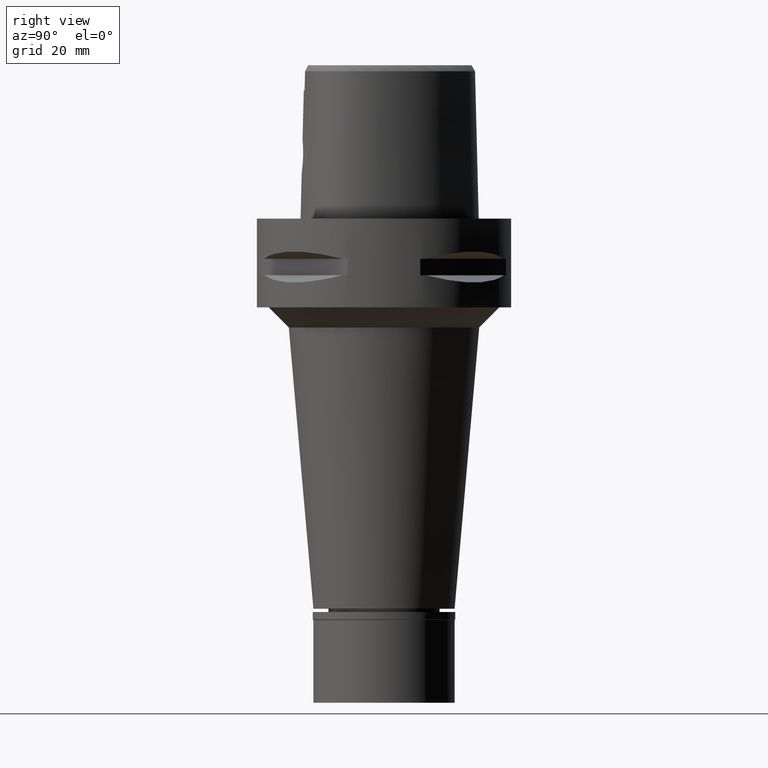
[diagram: clean part render]
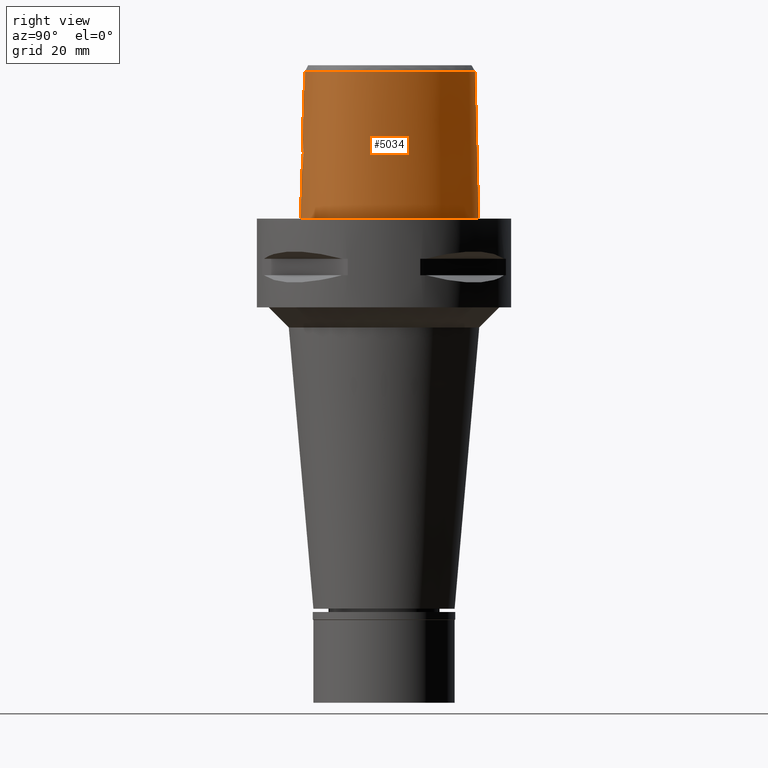
[diagram: same view with one face highlighted and labeled with its STEP entity id]
A machine part, right view. The second image highlights one B-rep face of the part: STEP entity #5034.
In plain terms, the highlighted face is a freeform B-spline surface patch.
Its self-contained STEP definition (entity closure, byte-faithful):
#17 = CARTESIAN_POINT ( 'NONE',  ( 3.042491796684531291, -20.22274507510633867, 12.82354767342773272 ) ) ;
#33 = CARTESIAN_POINT ( 'NONE',  ( 3.637738219117000238, -19.56971420299000286, 36.52185956443999970 ) ) ;
#38 = CARTESIAN_POINT ( 'NONE',  ( 3.860403433732511491, -20.04330035601035220, 16.72651338066181026 ) ) ;
#46 = CARTESIAN_POINT ( 'NONE',  ( 21.05621876373999868, -0.4440252205142999897, 37.25233264522000098 ) ) ;
#62 = CARTESIAN_POINT ( 'NONE',  ( 3.686910441482199374, -20.13511169299744097, 13.82359477142099813 ) ) ;
#75 = CARTESIAN_POINT ( 'NONE',  ( 21.68301093544000224, -0.3332744170274000162, 11.93048561839999877 ) ) ;
#81 = CARTESIAN_POINT ( 'NONE',  ( 18.06826693619926516, 10.43171877940945613, -2.340869023712563793E-06 ) ) ;
#91 = CARTESIAN_POINT ( 'NONE',  ( 4.045013207763220819, -20.05847505278510567, 15.28275217474474346 ) ) ;
#93 = B_SPLINE_CURVE_WITH_KNOTS ( 'NONE', 3,
 ( #873, #3277, #1243, #2425, #4853, #4434, #1651, #3201, #515, #4029, #3682, #4366, #2377, #2810, #2447, #3962, #2095, #1605, #1317, #2071, #486, #455, #902, #3574, #4465, #17, #2015, #2857, #113, #3657, #3176, #3621, #4777, #1268, #62, #1627, #3229, #2404, #1219, #2779, #4810, #3255, #91, #824, #2835, #3989, #4412, #433, #3597, #1680, #38, #2506, #4960, #3803, #1806, #1757, #169, #4541, #3411, #4930, #634, #1781, #1036, #4491, #1419, #4513, #2593, #3335, #2960, #2916, #3732, #4908, #3311, #3356, #4079, #2985, #246, #3382, #1367, #2936, #1013, #4565, #979, #2170, #1390 ),
 .UNSPECIFIED., .F., .F.,
 ( 4, 2, 2, 1, 1, 1, 2, 2, 2, 2, 2, 1, 1, 2, 2, 2, 2, 2, 2, 1, 2, 2, 2, 2, 1, 2, 2, 2, 2, 1, 1, 1, 2, 2, 2, 2, 2, 1, 1, 2, 2, 2, 2, 2, 2, 1, 2, 2, 4 ),
 ( 0.0000000000000000000, 0.06249999999999511502, 0.09374999999999265865, 0.1093749999999914235, 0.1171874999999907296, 0.1210937499999903966, 0.1230468749999902300, 0.1249999999999900635, 0.1874999999999801825, 0.2187499999999751032, 0.2343749999999726885, 0.2421874999999714950, 0.2460937499999708844, 0.2480468749999704681, 0.2499999999999700240, 0.2812499999999628075, 0.2968749999999591993, 0.3124999999999555911, 0.3437499999999480416, 0.3593749999999442668, 0.3671874999999423794, 0.3749999999999404920, 0.4374999999999257261, 0.4687499999999183431, 0.4843749999999148459, 0.4921874999999133471, 0.4999999999999118483, 0.5624999999998991917, 0.5937499999998928635, 0.6093749999998896438, 0.6171874999998880895, 0.6210937499998873124, 0.6230468749998872013, 0.6249999999998872013, 0.6874999999998976374, 0.7187499999999025224, 0.7343749999999049649, 0.7421874999999065192, 0.7460937499999071854, 0.7480468749999075184, 0.7499999999999079625, 0.7812499999999188427, 0.7968749999999242828, 0.8124999999999297229, 0.8437499999999406031, 0.8593749999999460432, 0.8671874999999487077, 0.8749999999999514833, 1.000000000000000000 ),
 .UNSPECIFIED. ) ;
#99 = CARTESIAN_POINT ( 'NONE',  ( 13.69241952609000101, 15.03666369301999950, 37.25233264522000098 ) ) ;
#104 = CARTESIAN_POINT ( 'NONE',  ( 4.711983029180999766E-11, 23.47499999999000053, 5.406786129924998921E-14 ) ) ;
#113 = CARTESIAN_POINT ( 'NONE',  ( 3.289399613302775638, -20.19244639184481116, 13.13636645578711359 ) ) ;
#122 = CARTESIAN_POINT ( 'NONE',  ( 21.44619278392000083, -6.759806529427999422, 24.59140913180999988 ) ) ;
#152 = CARTESIAN_POINT ( 'NONE',  ( 21.99640702127999603, -0.2778990152840000172, -0.7304378950044000396 ) ) ;
#157 = CARTESIAN_POINT ( 'NONE',  ( 4.757642236485276399, 21.67478320247255397, 36.52186680739954738 ) ) ;
#158 = CARTESIAN_POINT ( 'NONE',  ( 6.341471029610005417, -20.29812505792877531, -2.340869023712563793E-06 ) ) ;
#169 = CARTESIAN_POINT ( 'NONE',  ( 3.745459306425696688, -20.04797394566475077, 17.04080371184679166 ) ) ;
#174 = EDGE_CURVE ( 'NONE', #3353, #1009, #3948, .T. ) ;
#179 = EDGE_LOOP ( 'NONE', ( #4334, #4901, #699, #1260, #2805, #1439, #362, #3443 ) ) ;
#203 = CARTESIAN_POINT ( 'NONE',  ( -1.703764700877000038E-11, 22.56201468012000078, 36.52186680743999858 ) ) ;
#206 = CARTESIAN_POINT ( 'NONE',  ( 19.88562079789306125, 4.345879946636745927, 36.52186680739954738 ) ) ;
#230 = CARTESIAN_POINT ( 'NONE',  ( 20.09619608769112276, -10.23243839430244329, 36.52186680739954738 ) ) ;
#246 = CARTESIAN_POINT ( 'NONE',  ( 2.032175996666464535, -20.14130468680087560, 19.00576489869021302 ) ) ;
#258 = CARTESIAN_POINT ( 'NONE',  ( 21.07429999882349136, -0.4408303635841325230, 36.52186680739954738 ) ) ;
#306 = CARTESIAN_POINT ( 'NONE',  ( -0.4685451932369000261, 23.16976065823000042, 11.93048561839999877 ) ) ;
#345 = CARTESIAN_POINT ( 'NONE',  ( 11.13012652795000079, -18.61140108451999708, 11.93048561839999877 ) ) ;
#359 = CARTESIAN_POINT ( 'NONE',  ( 0.5990981970601000350, 23.20165460155999781, 11.93048561839999877 ) ) ;
#360 = B_SPLINE_CURVE_WITH_KNOTS ( 'NONE', 3,
 ( #4899, #2108, #158, #1333, #889, #3669, #4844, #4090, #2438, #2904, #2463, #552, #4821, #4453, #4020, #81, #1282, #1259, #2057, #1639, #2130, #4069, #104 ),
 .UNSPECIFIED., .F., .F.,
 ( 4, 1, 1, 1, 1, 1, 1, 1, 1, 1, 1, 1, 1, 1, 1, 1, 1, 1, 1, 1, 4 ),
 ( 0.0000000000000000000, 0.08333333333340001148, 0.1666666666667000196, 0.2083333333333000081, 0.2500000000000000000, 0.2916666666666999919, 0.3125000000000000000, 0.3333333333333000081, 0.3541666666666000163, 0.3749999999998999689, 0.4166666666666000163, 0.4583333333332000326, 0.4999999999998999689, 0.5833333333331000015, 0.6666666666664999852, 0.7499999999998000488, 0.8333333333329999704, 0.8749999999997000177, 0.9166666666664000651, 0.9583333333329999704, 1.000000000000000000 ),
 .UNSPECIFIED. ) ;
#362 = ORIENTED_EDGE ( 'NONE', *, *, #174, .T. ) ;
#368 = CARTESIAN_POINT ( 'NONE',  ( 11.02138175153000077, -18.31230440379999891, 24.59140913180999988 ) ) ;
#376 = CARTESIAN_POINT ( 'NONE',  ( 4.711983029180999766E-11, 23.47499999999000053, 5.406786129924998921E-14 ) ) ;
#410 = B_SPLINE_SURFACE_WITH_KNOTS ( 'NONE', 3, 3, ( 
 ( #3926, #2791, #3164, #1513 ),
 ( #4744, #1207, #4329, #834 ),
 ( #2691, #3142, #442, #5058 ),
 ( #3086, #2312, #4272, #3557 ),
 ( #3906, #345, #368, #3529 ),
 ( #5103, #4725, #2746, #784 ),
 ( #2361, #3323, #466, #885 ),
 ( #4790, #4816, #2869, #2081 ),
 ( #1253, #857, #549, #1710 ),
 ( #2103, #1745, #3665, #2925 ),
 ( #4840, #2514, #3690, #3264 ),
 ( #2433, #4015, #4042, #4065 ),
 ( #1659, #945, #122, #498 ),
 ( #3213, #4896, #4869, #2820 ),
 ( #152, #75, #4473, #46 ),
 ( #4499, #3717, #1633, #2025 ),
 ( #4113, #967, #3293, #3238 ),
 ( #4449, #4087, #1687, #99 ),
 ( #1352, #2535, #1301, #2049 ),
 ( #920, #3606, #2489, #2456 ),
 ( #4399, #524, #3636, #1329 ),
 ( #2900, #2127, #1276, #2843 ),
 ( #4421, #359, #3131, #4168 ),
 ( #1792, #306, #2156, #2582 ),
 ( #3106, #1180, #2739, #5047 ) ),
 .UNSPECIFIED., .F., .F., .F.,
 ( 4, 1, 1, 1, 1, 1, 1, 1, 1, 1, 1, 1, 1, 1, 1, 1, 1, 1, 1, 1, 1, 1, 4 ),
 ( 4, 4 ),
 ( -0.008985960173572999157, 0.0000000000000000000, 0.08333333333340001148, 0.1666666666667000196, 0.2083333333333000081, 0.2500000000000000000, 0.2916666666666999919, 0.3125000000000000000, 0.3333333333333000081, 0.3541666666666000163, 0.3749999999998999689, 0.4166666666666000163, 0.4583333333332000326, 0.4999999999998999689, 0.5833333333331000015, 0.6666666666664999852, 0.7499999999998000488, 0.8333333333329999704, 0.8749999999997000177, 0.9166666666664000651, 0.9583333333329999704, 1.000000000000000000, 1.011710456763000199 ),
 ( -4.468146998226999979E-09, 1.000000227875999848 ),
 .UNSPECIFIED. ) ;
#433 = CARTESIAN_POINT ( 'NONE',  ( 4.026067555602933723, -20.04243146964289934, 16.01312629724818848 ) ) ;
#442 = CARTESIAN_POINT ( 'NONE',  ( 1.853272111750000173, -20.08023965824000001, 24.59140913180999988 ) ) ;
#455 = CARTESIAN_POINT ( 'NONE',  ( 2.830175095658037154, -20.24590160278928508, 12.60298252333451252 ) ) ;
#466 = CARTESIAN_POINT ( 'NONE',  ( 16.57726024622999716, -15.19304449989999917, 24.59140913180999988 ) ) ;
#486 = CARTESIAN_POINT ( 'NONE',  ( 2.808608589969336489, -20.24816661311874100, 12.58196638594038497 ) ) ;
#498 = CARTESIAN_POINT ( 'NONE',  ( 21.13154852763999969, -6.714587026014999793, 37.25233264522000098 ) ) ;
#508 = EDGE_CURVE ( 'NONE', #1447, #4357, #601, .T. ) ;
#515 = CARTESIAN_POINT ( 'NONE',  ( 1.488028627205681742, -20.35026873354180310, 11.73319909950358131 ) ) ;
#524 = CARTESIAN_POINT ( 'NONE',  ( 4.987110637047000417, 22.24795272973999971, 11.93048561839999877 ) ) ;
#533 = CARTESIAN_POINT ( 'NONE',  ( 2.041042029990999821E-08, -19.88004246002000031, 31.80000004972000127 ) ) ;
#549 = CARTESIAN_POINT ( 'NONE',  ( 19.15132509490999979, -12.46323140321000089, 24.59140913180999988 ) ) ;
#552 = CARTESIAN_POINT ( 'NONE',  ( 22.05732880139742846, -6.847636727110003818, -2.340869023712563793E-06 ) ) ;
#601 = LINE ( 'NONE', #203, #897 ) ;
#634 = CARTESIAN_POINT ( 'NONE',  ( 3.265869583385797359, -20.07528142228585821, 17.89964299956978167 ) ) ;
#650 = CARTESIAN_POINT ( 'NONE',  ( 7.300578979383693934, -19.07170738130587750, 36.52186680739954738 ) ) ;
#699 = ORIENTED_EDGE ( 'NONE', *, *, #4381, .F. ) ;
#784 = CARTESIAN_POINT ( 'NONE',  ( 14.21104783100000013, -16.40237676551999968, 37.25233264522000098 ) ) ;
#790 = B_SPLINE_CURVE_WITH_KNOTS ( 'NONE', 3,
 ( #816, #1195, #3195, #3566 ),
 .UNSPECIFIED., .F., .F.,
 ( 4, 4 ),
 ( 0.0000000000000000000, 1.000000000000000000 ),
 .UNSPECIFIED. ) ;
#798 = CARTESIAN_POINT ( 'NONE',  ( -1.703764700877000038E-11, 22.56201468012000078, 36.52186680743999858 ) ) ;
#816 = CARTESIAN_POINT ( 'NONE',  ( 3.736696120837999402, -19.67778323291999953, 31.80000004972999861 ) ) ;
#824 = CARTESIAN_POINT ( 'NONE',  ( 4.048221369816550563, -20.05572751809631882, 15.37605551816500871 ) ) ;
#834 = CARTESIAN_POINT ( 'NONE',  ( -0.4439347078632999710, -19.74161804946999865, 37.25233264522000098 ) ) ;
#857 = CARTESIAN_POINT ( 'NONE',  ( 19.40779762277000131, -12.64961922656000048, 11.93048561839999877 ) ) ;
#873 = CARTESIAN_POINT ( 'NONE',  ( -1.023179399715999921E-12, -20.38876923348000147, 11.44999999999999929 ) ) ;
#885 = CARTESIAN_POINT ( 'NONE',  ( 16.38077671211999942, -14.94316433215000117, 37.25233264522000098 ) ) ;
#889 = CARTESIAN_POINT ( 'NONE',  ( 14.67337967325132908, -17.21410161350732082, -2.340869023712563793E-06 ) ) ;
#897 = VECTOR ( 'NONE', #1793, 999.9999999999998863 ) ;
#902 = CARTESIAN_POINT ( 'NONE',  ( 2.844541275131343472, -20.24438467540248965, 12.61708719065900475 ) ) ;
#920 = CARTESIAN_POINT ( 'NONE',  ( 7.580410842885000555, 21.33037926756000147, -0.7304378950044000396 ) ) ;
#929 = CARTESIAN_POINT ( 'NONE',  ( 2.503154195451466890, -19.81241979350624405, 31.80000012137768906 ) ) ;
#945 = CARTESIAN_POINT ( 'NONE',  ( 21.76083704019000109, -6.805026032840999939, 11.93048561839999877 ) ) ;
#967 = CARTESIAN_POINT ( 'NONE',  ( 17.80867300954000143, 10.28184204431999760, 11.93048561839999877 ) ) ;
#979 = CARTESIAN_POINT ( 'NONE',  ( 1.027682876504587339, -20.17741712424493272, 19.45809765211912179 ) ) ;
#1008 = CARTESIAN_POINT ( 'NONE',  ( 0.0000000000000000000, -20.18628283968999781, 19.55000000000000071 ) ) ;
#1009 = VERTEX_POINT ( 'NONE', #4550 ) ;
#1013 = CARTESIAN_POINT ( 'NONE',  ( 1.613182323480255143, -20.15753140428500956, 19.21500890072886847 ) ) ;
#1036 = CARTESIAN_POINT ( 'NONE',  ( 3.080229322179501850, -20.08617626112514998, 18.13071590546873324 ) ) ;
#1180 = CARTESIAN_POINT ( 'NONE',  ( -0.7025952810403001125, 23.15559737187000167, 11.93048561839999877 ) ) ;
#1195 = CARTESIAN_POINT ( 'NONE',  ( 3.704239288984441103, -19.64128042389065598, 33.37395322129999897 ) ) ;
#1207 = CARTESIAN_POINT ( 'NONE',  ( -0.4520500659801000021, -20.37458439087999906, 11.93048561839999877 ) ) ;
#1219 = CARTESIAN_POINT ( 'NONE',  ( 3.927790621264558357, -20.09243382075442241, 14.47756111131404921 ) ) ;
#1228 = FACE_OUTER_BOUND ( 'NONE', #179, .T. ) ;
#1243 = CARTESIAN_POINT ( 'NONE',  ( 0.5100579658808596095, -20.38531276215466903, 11.47358267918780506 ) ) ;
#1253 = CARTESIAN_POINT ( 'NONE',  ( 19.66427015062999928, -12.83600704991000008, -0.7304378950044000396 ) ) ;
#1259 = CARTESIAN_POINT ( 'NONE',  ( 10.74572894842425441, 19.17433598256371141, -2.340869023712563793E-06 ) ) ;
#1260 = ORIENTED_EDGE ( 'NONE', *, *, #4673, .T. ) ;
#1268 = CARTESIAN_POINT ( 'NONE',  ( 3.644654988411417218, -20.14185568965836737, 13.73169098936010002 ) ) ;
#1276 = CARTESIAN_POINT ( 'NONE',  ( 2.438150569352000030, 22.68791622998000435, 24.59140913180999988 ) ) ;
#1282 = CARTESIAN_POINT ( 'NONE',  ( 14.40795643454458386, 15.64093753797241426, -2.340869023712563793E-06 ) ) ;
#1301 = CARTESIAN_POINT ( 'NONE',  ( 10.34823226544999919, 18.70095485719999928, 24.59140913180999988 ) ) ;
#1317 = CARTESIAN_POINT ( 'NONE',  ( 2.714817435285833191, -20.25772213911198349, 12.49437854279828031 ) ) ;
#1329 = CARTESIAN_POINT ( 'NONE',  ( 4.750826074913000241, 21.65775769440000076, 37.25233264522000098 ) ) ;
#1333 = CARTESIAN_POINT ( 'NONE',  ( 11.23259758738402070, -18.89324224279648234, -2.340869023712563793E-06 ) ) ;
#1352 = CARTESIAN_POINT ( 'NONE',  ( 10.75753574162999904, 19.18839676167000263, -0.7304378950044000396 ) ) ;
#1367 = CARTESIAN_POINT ( 'NONE',  ( 1.767192251251785473, -20.15197845540285115, 19.14519926632054947 ) ) ;
#1377 = CARTESIAN_POINT ( 'NONE',  ( 16.39211273426795401, -14.95758104716268022, 36.52186680739954738 ) ) ;
#1384 = CARTESIAN_POINT ( 'NONE',  ( 6.840735087890349407E-09, -20.08420636276183657, 23.63333344114106538 ) ) ;
#1390 = CARTESIAN_POINT ( 'NONE',  ( 0.0000000000000000000, -20.18628283968999781, 19.55000000000000071 ) ) ;
#1419 = CARTESIAN_POINT ( 'NONE',  ( 2.963657114686569560, -20.09293563006364636, 18.26079471621887507 ) ) ;
#1431 = CARTESIAN_POINT ( 'NONE',  ( 0.7901461619516073620, 22.56201467849450637, 36.52186680739954738 ) ) ;
#1439 = ORIENTED_EDGE ( 'NONE', *, *, #1610, .F. ) ;
#1447 = VERTEX_POINT ( 'NONE', #798 ) ;
#1454 = CARTESIAN_POINT ( 'NONE',  ( -1.703764700877000038E-11, 22.56201468012000078, 36.52186680743999858 ) ) ;
#1513 = CARTESIAN_POINT ( 'NONE',  ( -0.6657939487793000932, -19.73734192354999806, 37.25233264522000098 ) ) ;
#1605 = CARTESIAN_POINT ( 'NONE',  ( 2.628027080897680001, -20.26624238139287471, 12.41747670474953402 ) ) ;
#1610 = EDGE_CURVE ( 'NONE', #3353, #2771, #93, .T. ) ;
#1627 = CARTESIAN_POINT ( 'NONE',  ( 3.714384130429928987, -20.13065104889713552, 13.88538127549326084 ) ) ;
#1633 = CARTESIAN_POINT ( 'NONE',  ( 20.16779717912000081, 4.447573587026999675, 24.59140913180999988 ) ) ;
#1639 = CARTESIAN_POINT ( 'NONE',  ( 5.098437039127393433, 22.52602544519114147, -2.340869023712563793E-06 ) ) ;
#1651 = CARTESIAN_POINT ( 'NONE',  ( 1.319600680390136116, -20.35863312411228776, 11.66994494017183470 ) ) ;
#1659 = CARTESIAN_POINT ( 'NONE',  ( 22.07548129646999868, -6.850245536253999568, -0.7304378950044000396 ) ) ;
#1680 = CARTESIAN_POINT ( 'NONE',  ( 3.918456791367074921, -20.04170609324424035, 16.53266420033527240 ) ) ;
#1687 = CARTESIAN_POINT ( 'NONE',  ( 13.93560852545000017, 15.24203779735000097, 24.59140913180999988 ) ) ;
#1710 = CARTESIAN_POINT ( 'NONE',  ( 18.89485256705000182, -12.27684357985999952, 37.25233264522000098 ) ) ;
#1745 = CARTESIAN_POINT ( 'NONE',  ( 20.09084466977000005, -11.59945457777000044, 11.93048561839999877 ) ) ;
#1748 = CARTESIAN_POINT ( 'NONE',  ( 17.27359236348947036, 9.972912859139283270, 36.52186680739954738 ) ) ;
#1757 = CARTESIAN_POINT ( 'NONE',  ( 3.749536200693853516, -20.04778253193094528, 17.03086640830719034 ) ) ;
#1771 = CARTESIAN_POINT ( 'NONE',  ( 10.15538781006315716, 18.47129526703229629, 36.52186680739954738 ) ) ;
#1781 = CARTESIAN_POINT ( 'NONE',  ( 3.128678969656458086, -20.08334280844291087, 18.07279819847896718 ) ) ;
#1792 = CARTESIAN_POINT ( 'NONE',  ( -0.4812391256267000150, 23.48607176824999954, -0.7304378950044000396 ) ) ;
#1793 = DIRECTION ( 'NONE',  ( 1.756138055920959342E-12, 0.02499051290962944413, -0.9996876883629776112 ) ) ;
#1806 = CARTESIAN_POINT ( 'NONE',  ( 3.755991642142385789, -20.04748304465439901, 17.01495889863508282 ) ) ;
#1842 = VECTOR ( 'NONE', #2411, 1000.000000000000114 ) ;
#1846 = CARTESIAN_POINT ( 'NONE',  ( 7.108589361577276833, 20.52412316394626401, 36.52186680739954738 ) ) ;
#2015 = CARTESIAN_POINT ( 'NONE',  ( 3.169150985200410720, -20.20760989054334900, 12.97742286930013478 ) ) ;
#2025 = CARTESIAN_POINT ( 'NONE',  ( 19.86834399155999620, 4.339653552625000188, 37.25233264522000098 ) ) ;
#2049 = CARTESIAN_POINT ( 'NONE',  ( 10.14358052735000193, 18.45723390497000338, 37.25233264522000098 ) ) ;
#2057 = CARTESIAN_POINT ( 'NONE',  ( 7.571159463999694417, 21.31457036315773124, -2.340869023712563793E-06 ) ) ;
#2071 = CARTESIAN_POINT ( 'NONE',  ( 2.758179676619023191, -20.25337897196584436, 12.53390918840871393 ) ) ;
#2081 = CARTESIAN_POINT ( 'NONE',  ( 17.88993631427999986, -13.52674997591999961, 37.25233264522000098 ) ) ;
#2095 = CARTESIAN_POINT ( 'NONE',  ( 2.570081009077909151, -20.27170108689831807, 12.36908902938835730 ) ) ;
#2103 = CARTESIAN_POINT ( 'NONE',  ( 20.36546124980000272, -11.75800453477999952, -0.7304378950044000396 ) ) ;
#2108 = CARTESIAN_POINT ( 'NONE',  ( 2.113823676545362851, -20.67500005851327671, -2.340869023712563369E-06 ) ) ;
#2127 = CARTESIAN_POINT ( 'NONE',  ( 2.503210888118000188, 22.99958930960000103, 11.93048561839999877 ) ) ;
#2130 = CARTESIAN_POINT ( 'NONE',  ( 2.564517738985089945, 23.29328130762672089, -2.340869023712563793E-06 ) ) ;
#2156 = CARTESIAN_POINT ( 'NONE',  ( -0.4558512608472000127, 22.85344954821000130, 24.59140913180999988 ) ) ;
#2170 = CARTESIAN_POINT ( 'NONE',  ( 0.4948470747602111142, -20.18628283969001203, 19.55000000000000426 ) ) ;
#2183 = CARTESIAN_POINT ( 'NONE',  ( 10.91891095221222940, -18.03046396093338544, 36.52186680739954738 ) ) ;
#2312 = CARTESIAN_POINT ( 'NONE',  ( 6.288476564660999912, -20.00290563507000030, 11.93048561839999877 ) ) ;
#2361 = CARTESIAN_POINT ( 'NONE',  ( 16.97022731443999888, -15.69280483540000048, -0.7304378950044000396 ) ) ;
#2377 = CARTESIAN_POINT ( 'NONE',  ( 1.734379789051311294, -20.33697246834272576, 11.83436638252414319 ) ) ;
#2404 = CARTESIAN_POINT ( 'NONE',  ( 3.850246712485323908, -20.10780614033383884, 14.21172176748870974 ) ) ;
#2411 = DIRECTION ( 'NONE',  ( -6.261909428899818924E-13, -0.02499051295389925070, -0.9996876883618708298 ) ) ;
#2425 = CARTESIAN_POINT ( 'NONE',  ( 0.8988479711755551493, -20.37494334817868236, 11.54879813003848987 ) ) ;
#2433 = CARTESIAN_POINT ( 'NONE',  ( 21.57281239781000082, -9.001246196725999127, -0.7304378950044000396 ) ) ;
#2438 = CARTESIAN_POINT ( 'NONE',  ( 20.34961803634114474, -11.74885745118976033, -2.340869023712563793E-06 ) ) ;
#2447 = CARTESIAN_POINT ( 'NONE',  ( 2.282207029739326654, -20.29700151028903576, 12.15162930636601146 ) ) ;
#2456 = CARTESIAN_POINT ( 'NONE',  ( 7.099337599132000243, 20.50831360411000048, 37.25233264522000098 ) ) ;
#2463 = CARTESIAN_POINT ( 'NONE',  ( 21.55524831638515693, -8.996025407356324166, -2.340869023712563793E-06 ) ) ;
#2489 = CARTESIAN_POINT ( 'NONE',  ( 7.259695347050000969, 20.78233549193000229, 24.59140913180999988 ) ) ;
#2506 = CARTESIAN_POINT ( 'NONE',  ( 3.828814954406154936, -20.04436409866707436, 16.82317999466501490 ) ) ;
#2514 = CARTESIAN_POINT ( 'NONE',  ( 20.65879041138000005, -10.48283616273000085, 11.93048561839999877 ) ) ;
#2535 = CARTESIAN_POINT ( 'NONE',  ( 10.55288400354000089, 18.94467580942999874, 11.93048561839999877 ) ) ;
#2545 = CARTESIAN_POINT ( 'NONE',  ( 2.041042029990999821E-08, -19.88004246002000031, 31.80000004972000127 ) ) ;
#2582 = CARTESIAN_POINT ( 'NONE',  ( -0.4431573284574000238, 22.53713843818999862, 37.25233264522000098 ) ) ;
#2584 = CARTESIAN_POINT ( 'NONE',  ( -1.023179399715999921E-12, -20.38876923348000147, 11.44999999999999929 ) ) ;
#2593 = CARTESIAN_POINT ( 'NONE',  ( 2.894506219204642683, -20.09690955887034391, 18.33274339089242844 ) ) ;
#2606 = CARTESIAN_POINT ( 'NONE',  ( 13.70645019738960535, 15.04851265230225899, 36.52186680739954738 ) ) ;
#2634 = CARTESIAN_POINT ( 'NONE',  ( 18.90964962507999303, -12.28759713487505678, 36.52186680739954738 ) ) ;
#2691 = CARTESIAN_POINT ( 'NONE',  ( 1.886855603556999883, -20.71358920077999954, -0.7304378950044000396 ) ) ;
#2739 = CARTESIAN_POINT ( 'NONE',  ( -0.6834383969839999962, 22.83968675141000304, 24.59140913180999988 ) ) ;
#2746 = CARTESIAN_POINT ( 'NONE',  ( 14.36818021195999862, -16.67825708868000234, 24.59140913180999988 ) ) ;
#2771 = VERTEX_POINT ( 'NONE', #1008 ) ;
#2779 = CARTESIAN_POINT ( 'NONE',  ( 4.002664568940697443, -20.07397280447634813, 14.86850854325289717 ) ) ;
#2791 = CARTESIAN_POINT ( 'NONE',  ( -0.6779734120767000327, -20.37023475404999928, 11.93048561839999877 ) ) ;
#2805 = ORIENTED_EDGE ( 'NONE', *, *, #2924, .T. ) ;
#2810 = CARTESIAN_POINT ( 'NONE',  ( 1.946611601990708040, -20.32311006286680310, 11.93862046598382243 ) ) ;
#2820 = CARTESIAN_POINT ( 'NONE',  ( 21.31039797446999984, -4.105938499119999641, 37.25233264522000098 ) ) ;
#2827 = CARTESIAN_POINT ( 'NONE',  ( 1.251533272182007828, -19.88005341395147951, 31.80000012137768906 ) ) ;
#2835 = CARTESIAN_POINT ( 'NONE',  ( 4.049643110176168292, -20.05399160878485887, 15.43795828968013595 ) ) ;
#2843 = CARTESIAN_POINT ( 'NONE',  ( 2.373090250584999783, 22.37624315036999789, 37.25233264522000098 ) ) ;
#2857 = CARTESIAN_POINT ( 'NONE',  ( 3.210108431846574462, -20.20255916619523617, 13.02975361489741957 ) ) ;
#2869 = CARTESIAN_POINT ( 'NONE',  ( 18.12052889945000089, -13.74516014035000033, 24.59140913180999988 ) ) ;
#2900 = CARTESIAN_POINT ( 'NONE',  ( 2.568271206884999991, 23.31126238921000038, -0.7304378950044000396 ) ) ;
#2904 = CARTESIAN_POINT ( 'NONE',  ( 20.93173257567003276, -10.60431643008571889, -2.340869023712563793E-06 ) ) ;
#2916 = CARTESIAN_POINT ( 'NONE',  ( 2.772326413961004210, -20.10389738242811930, 18.45539022241095495 ) ) ;
#2924 = EDGE_CURVE ( 'NONE', #3772, #2771, #4482, .T. ) ;
#2925 = CARTESIAN_POINT ( 'NONE',  ( 19.54161150969000005, -11.28235466375000051, 37.25233264522000098 ) ) ;
#2927 = CARTESIAN_POINT ( 'NONE',  ( 2.376843874103313325, 22.39422497744449458, 36.52186680739954738 ) ) ;
#2936 = CARTESIAN_POINT ( 'NONE',  ( 1.675120599120963227, -20.15532933629875245, 19.18749499249620882 ) ) ;
#2945 = CARTESIAN_POINT ( 'NONE',  ( 14.22011350746388203, -16.41829354688130493, 36.52186680739954738 ) ) ;
#2955 = CARTESIAN_POINT ( 'NONE',  ( 0.0000000000000000000, -20.18628283968999781, 19.55000000000000071 ) ) ;
#2960 = CARTESIAN_POINT ( 'NONE',  ( 2.871987183428478918, -20.09819914941970254, 18.35556622516749670 ) ) ;
#2985 = CARTESIAN_POINT ( 'NONE',  ( 2.144427845708294811, -20.13626349860851761, 18.93810770242787100 ) ) ;
#3000 = CARTESIAN_POINT ( 'NONE',  ( 21.14970177531071016, -6.717195943319604012, 36.52186680739954738 ) ) ;
#3025 = CARTESIAN_POINT ( 'NONE',  ( 4.467522181836339534, -19.48130276147119488, 36.52186680739954738 ) ) ;
#3086 = CARTESIAN_POINT ( 'NONE',  ( 6.344715577654000072, -20.31619965499999836, -0.7304378950044000396 ) ) ;
#3106 = CARTESIAN_POINT ( 'NONE',  ( -0.7217521650966999269, 23.47150799234000118, -0.7304378950044000396 ) ) ;
#3131 = CARTESIAN_POINT ( 'NONE',  ( 0.5826623197998999082, 22.88447422017000221, 24.59140913180999988 ) ) ;
#3142 = CARTESIAN_POINT ( 'NONE',  ( 1.870063857654000072, -20.39691442950999800, 11.93048561839999877 ) ) ;
#3147 = CARTESIAN_POINT ( 'NONE',  ( 2.041042029990999821E-08, -19.88004246002000031, 31.80000004972000127 ) ) ;
#3164 = CARTESIAN_POINT ( 'NONE',  ( -0.6718836804279999519, -20.05378833879999689, 24.59140913180999988 ) ) ;
#3176 = CARTESIAN_POINT ( 'NONE',  ( 3.437023659240730833, -20.17240543795051266, 13.35378256598082736 ) ) ;
#3192 = CARTESIAN_POINT ( 'NONE',  ( 3.736696120837999402, -19.67778323291999953, 31.80000004972999861 ) ) ;
#3195 = CARTESIAN_POINT ( 'NONE',  ( 3.671249151389730514, -19.60525176641679579, 34.94790639287000289 ) ) ;
#3201 = CARTESIAN_POINT ( 'NONE',  ( 1.432005274344079204, -20.35315137661976692, 11.71134280122707771 ) ) ;
#3213 = CARTESIAN_POINT ( 'NONE',  ( 22.26285557078999844, -4.100361500017000616, -0.7304378950044000396 ) ) ;
#3229 = CARTESIAN_POINT ( 'NONE',  ( 3.727121516754793085, -20.12854809717897453, 13.91496385436843930 ) ) ;
#3238 = CARTESIAN_POINT ( 'NONE',  ( 17.25769825288999826, 9.963736383269999664, 37.25233264522000098 ) ) ;
#3255 = CARTESIAN_POINT ( 'NONE',  ( 4.038482247990498486, -20.06165359963865669, 15.18817721993928060 ) ) ;
#3264 = CARTESIAN_POINT ( 'NONE',  ( 20.07948470695000154, -10.22500054384999935, 37.25233264522000098 ) ) ;
#3277 = CARTESIAN_POINT ( 'NONE',  ( 0.2519697368789032277, -20.38876923348000503, 11.45000000000000107 ) ) ;
#3293 = CARTESIAN_POINT ( 'NONE',  ( 17.53318563120999940, 10.12278921378999996, 24.59140913180999988 ) ) ;
#3311 = CARTESIAN_POINT ( 'NONE',  ( 2.467729343595081115, -20.12009802658496582, 18.71204267792693798 ) ) ;
#3323 = CARTESIAN_POINT ( 'NONE',  ( 16.77374378033999847, -15.44292466764999894, 11.93048561839999877 ) ) ;
#3335 = CARTESIAN_POINT ( 'NONE',  ( 2.880386059684364675, -20.09771851976561763, 18.34709984349601797 ) ) ;
#3346 = CARTESIAN_POINT ( 'NONE',  ( 21.32871516740218354, -4.105831245034413435, 36.52186680739954738 ) ) ;
#3353 = VERTEX_POINT ( 'NONE', #2584 ) ;
#3356 = CARTESIAN_POINT ( 'NONE',  ( 2.361140904827189857, -20.12552479265212924, 18.79118822093420960 ) ) ;
#3370 = EDGE_CURVE ( 'NONE', #1447, #4548, #4914, .T. ) ;
#3382 = CARTESIAN_POINT ( 'NONE',  ( 1.856701250897947464, -20.14848423775751485, 19.09993988373319240 ) ) ;
#3411 = CARTESIAN_POINT ( 'NONE',  ( 3.559803832323797046, -20.05788146350401391, 17.44950363748058209 ) ) ;
#3443 = ORIENTED_EDGE ( 'NONE', *, *, #3832, .T. ) ;
#3529 = CARTESIAN_POINT ( 'NONE',  ( 10.91263697510999897, -18.01320772309000162, 37.25233264522000098 ) ) ;
#3557 = CARTESIAN_POINT ( 'NONE',  ( 6.175998538674999594, -19.37631759522000152, 37.25233264522000098 ) ) ;
#3566 = CARTESIAN_POINT ( 'NONE',  ( 3.637738219117000238, -19.56971420299000286, 36.52185956443999970 ) ) ;
#3574 = CARTESIAN_POINT ( 'NONE',  ( 2.853007646184912094, -20.24348516854156443, 12.62547111175370773 ) ) ;
#3597 = CARTESIAN_POINT ( 'NONE',  ( 3.950323019394553992, -20.04135421479659485, 16.40274729700124823 ) ) ;
#3606 = CARTESIAN_POINT ( 'NONE',  ( 7.420053094966999829, 21.05635737975000055, 11.93048561839999877 ) ) ;
#3615 = VERTEX_POINT ( 'NONE', #3192 ) ;
#3621 = CARTESIAN_POINT ( 'NONE',  ( 3.504989208053717054, -20.16277707627710569, 13.46647361461483783 ) ) ;
#3636 = CARTESIAN_POINT ( 'NONE',  ( 4.868968355979999885, 21.95285521207000201, 24.59140913180999988 ) ) ;
#3657 = CARTESIAN_POINT ( 'NONE',  ( 3.328551379878740502, -20.18727222454431214, 13.19186960104623907 ) ) ;
#3665 = CARTESIAN_POINT ( 'NONE',  ( 19.81622808973000360, -11.44090462075999959, 24.59140913180999988 ) ) ;
#3669 = CARTESIAN_POINT ( 'NONE',  ( 16.95889176226191353, -15.67838871807612122, -2.340869023712563793E-06 ) ) ;
#3682 = CARTESIAN_POINT ( 'NONE',  ( 1.527965580144372781, -20.34815231994709706, 11.74928068373174561 ) ) ;
#3690 = CARTESIAN_POINT ( 'NONE',  ( 20.36913755915999857, -10.35391835329000010, 24.59140913180999988 ) ) ;
#3694 = B_SPLINE_CURVE_WITH_KNOTS ( 'NONE', 3,
 ( #4456, #929, #2827, #533 ),
 .UNSPECIFIED., .F., .F.,
 ( 4, 4 ),
 ( 0.0000000000000000000, 1.000000000000000000 ),
 .UNSPECIFIED. ) ;
#3717 = CARTESIAN_POINT ( 'NONE',  ( 20.46725036667000097, 4.555493621429000051, 11.93048561839999877 ) ) ;
#3719 = CARTESIAN_POINT ( 'NONE',  ( 19.55745538000528683, -11.29150212657615526, 36.52186680739954738 ) ) ;
#3732 = CARTESIAN_POINT ( 'NONE',  ( 2.673904828757555308, -20.10928166633813419, 18.54472627324817680 ) ) ;
#3746 = CARTESIAN_POINT ( 'NONE',  ( 20.67704204633749043, -8.734985285293364043, 36.52186680739954738 ) ) ;
#3772 = VERTEX_POINT ( 'NONE', #3147 ) ;
#3803 = CARTESIAN_POINT ( 'NONE',  ( 3.765593220699524402, -20.04704214534188722, 16.99108095766887061 ) ) ;
#3832 = EDGE_CURVE ( 'NONE', #1009, #4357, #360, .T. ) ;
#3906 = CARTESIAN_POINT ( 'NONE',  ( 11.23887130437999993, -18.91049776522999792, -0.7304378950044000396 ) ) ;
#3926 = CARTESIAN_POINT ( 'NONE',  ( -0.6840631437254000025, -20.68668116929000078, -0.7304378950044000396 ) ) ;
#3948 = LINE ( 'NONE', #4043, #1842 ) ;
#3962 = CARTESIAN_POINT ( 'NONE',  ( 2.396851615573325933, -20.28741283536913897, 12.23208293719064699 ) ) ;
#3989 = CARTESIAN_POINT ( 'NONE',  ( 4.049995275655165372, -20.05320010482861548, 15.46762644421465183 ) ) ;
#4015 = CARTESIAN_POINT ( 'NONE',  ( 21.26836734411000052, -8.910752224308000180, 11.93048561839999877 ) ) ;
#4020 = CARTESIAN_POINT ( 'NONE',  ( 20.74942746415953465, 4.657187519953368771, -2.340869023712563793E-06 ) ) ;
#4029 = CARTESIAN_POINT ( 'NONE',  ( 1.511996643077466285, -20.34900293593731746, 11.74281483622962696 ) ) ;
#4042 = CARTESIAN_POINT ( 'NONE',  ( 20.96392229040999666, -8.820258251888999368, 24.59140913180999988 ) ) ;
#4043 = CARTESIAN_POINT ( 'NONE',  ( -1.023179399715999921E-12, -20.38876923348000147, 11.44999999999999929 ) ) ;
#4065 = CARTESIAN_POINT ( 'NONE',  ( 20.65947723670999991, -8.729764279471000421, 37.25233264522000098 ) ) ;
#4069 = CARTESIAN_POINT ( 'NONE',  ( 0.8548392464551050063, 23.47500005852212723, -2.340869023712563793E-06 ) ) ;
#4079 = CARTESIAN_POINT ( 'NONE',  ( 2.305334229541142310, -20.12831948498809354, 18.83048013503184492 ) ) ;
#4087 = CARTESIAN_POINT ( 'NONE',  ( 14.17879752480000022, 15.44741190168999978, 11.93048561839999877 ) ) ;
#4090 = CARTESIAN_POINT ( 'NONE',  ( 19.64947370605709054, -12.82525394071629776, -2.340869023712563793E-06 ) ) ;
#4113 = CARTESIAN_POINT ( 'NONE',  ( 18.08416038785999902, 10.44089487483999967, -0.7304378950044000396 ) ) ;
#4168 = CARTESIAN_POINT ( 'NONE',  ( 0.5662264425397000034, 22.56729383878999684, 37.25233264522000098 ) ) ;
#4272 = CARTESIAN_POINT ( 'NONE',  ( 6.232237551667999753, -19.68961161514999958, 24.59140913180999988 ) ) ;
#4329 = CARTESIAN_POINT ( 'NONE',  ( -0.4479923869217000143, -20.05810122017999930, 24.59140913180999988 ) ) ;
#4334 = ORIENTED_EDGE ( 'NONE', *, *, #508, .F. ) ;
#4357 = VERTEX_POINT ( 'NONE', #376 ) ;
#4366 = CARTESIAN_POINT ( 'NONE',  ( 1.537967824490479307, -20.34761404973957966, 11.75337532982781497 ) ) ;
#4381 = EDGE_CURVE ( 'NONE', #3615, #4548, #790, .T. ) ;
#4399 = CARTESIAN_POINT ( 'NONE',  ( 5.105252918115000149, 22.54305024741999830, -0.7304378950044000396 ) ) ;
#4412 = CARTESIAN_POINT ( 'NONE',  ( 4.050037399383527692, -20.04599349312611523, 15.75361975468774567 ) ) ;
#4421 = CARTESIAN_POINT ( 'NONE',  ( 0.6155340743202999398, 23.51883498293999963, -0.7304378950044000396 ) ) ;
#4434 = CARTESIAN_POINT ( 'NONE',  ( 1.222756221967065127, -20.36284569854003124, 11.63840396453690929 ) ) ;
#4449 = CARTESIAN_POINT ( 'NONE',  ( 14.42198652415999938, 15.65278600601999948, -0.7304378950044000396 ) ) ;
#4453 = CARTESIAN_POINT ( 'NONE',  ( 21.97832653580970685, -0.2810937397616486977, -2.340869023712563793E-06 ) ) ;
#4456 = CARTESIAN_POINT ( 'NONE',  ( 3.736696120837999402, -19.67778323291999953, 31.80000004972999861 ) ) ;
#4465 = CARTESIAN_POINT ( 'NONE',  ( 2.953000302317442927, -20.23281254683988806, 12.72512295698802731 ) ) ;
#4473 = CARTESIAN_POINT ( 'NONE',  ( 21.36961484958999691, -0.3886498187708999907, 24.59140913180999988 ) ) ;
#4482 = B_SPLINE_CURVE_WITH_KNOTS ( 'NONE', 3,
 ( #2545, #4926, #1384, #2955 ),
 .UNSPECIFIED., .F., .F.,
 ( 4, 4 ),
 ( 0.0000000000000000000, 1.000000000000000000 ),
 .UNSPECIFIED. ) ;
#4491 = CARTESIAN_POINT ( 'NONE',  ( 3.003234361615560566, -20.09064592609333744, 18.21745801850493152 ) ) ;
#4499 = CARTESIAN_POINT ( 'NONE',  ( 20.76670355422999847, 4.663413655830999538, -0.7304378950044000396 ) ) ;
#4513 = CARTESIAN_POINT ( 'NONE',  ( 2.915545606163056469, -20.09570297646320114, 18.31119129212002150 ) ) ;
#4541 = CARTESIAN_POINT ( 'NONE',  ( 3.664274183418350983, -20.05181531545110829, 17.23726368441676371 ) ) ;
#4548 = VERTEX_POINT ( 'NONE', #33 ) ;
#4550 = CARTESIAN_POINT ( 'NONE',  ( -8.195305634298999699E-12, -20.67499999999999716, 5.695444116326998779E-14 ) ) ;
#4565 = CARTESIAN_POINT ( 'NONE',  ( 1.583085234474576275, -20.15857747892415119, 19.22794739783264717 ) ) ;
#4605 = CARTESIAN_POINT ( 'NONE',  ( 3.637738219117000238, -19.56971420299000286, 36.52185956443999970 ) ) ;
#4673 = EDGE_CURVE ( 'NONE', #3615, #3772, #3694, .T. ) ;
#4725 = CARTESIAN_POINT ( 'NONE',  ( 14.52531259291000154, -16.95413741183000056, 11.93048561839999877 ) ) ;
#4744 = CARTESIAN_POINT ( 'NONE',  ( -0.4561077450384999898, -20.69106756158999971, -0.7304378950044000396 ) ) ;
#4777 = CARTESIAN_POINT ( 'NONE',  ( 3.599362307144391426, -20.14875877785065938, 13.64217581319817363 ) ) ;
#4790 = CARTESIAN_POINT ( 'NONE',  ( 18.58171406978999940, -14.18198046921999911, -0.7304378950044000396 ) ) ;
#4810 = CARTESIAN_POINT ( 'NONE',  ( 4.020738798783058954, -20.06858537623217487, 14.99755720130812620 ) ) ;
#4816 = CARTESIAN_POINT ( 'NONE',  ( 18.35112148461999837, -13.96357030477999928, 11.93048561839999877 ) ) ;
#4821 = CARTESIAN_POINT ( 'NONE',  ( 22.24453913725280430, -4.100468749656040579, -2.340869023712563793E-06 ) ) ;
#4840 = CARTESIAN_POINT ( 'NONE',  ( 20.94844326359000064, -10.61175397217999894, -0.7304378950044000396 ) ) ;
#4844 = CARTESIAN_POINT ( 'NONE',  ( 18.56841069404890021, -14.16937992319170192, -2.340869023712563793E-06 ) ) ;
#4853 = CARTESIAN_POINT ( 'NONE',  ( 1.028701314430592317, -20.37062275902201947, 11.58049741886263284 ) ) ;
#4869 = CARTESIAN_POINT ( 'NONE',  ( 21.62788383990999819, -4.104079499418999966, 24.59140913180999988 ) ) ;
#4896 = CARTESIAN_POINT ( 'NONE',  ( 21.94536970535000364, -4.102220499717999402, 11.93048561839999877 ) ) ;
#4899 = CARTESIAN_POINT ( 'NONE',  ( -8.195305634298999699E-12, -20.67499999999999716, 5.695444116326998779E-14 ) ) ;
#4901 = ORIENTED_EDGE ( 'NONE', *, *, #3370, .T. ) ;
#4908 = CARTESIAN_POINT ( 'NONE',  ( 2.520050460813455739, -20.11738995382102857, 18.67115940201988522 ) ) ;
#4914 = B_SPLINE_CURVE_WITH_KNOTS ( 'NONE', 3,
 ( #1454, #1431, #2927, #157, #1846, #1771, #2606, #1748, #206, #258, #3346, #3000, #3746, #230, #3719, #2634, #4974, #1377, #2945, #2183, #650, #3025, #4605 ),
 .UNSPECIFIED., .F., .F.,
 ( 4, 1, 1, 1, 1, 1, 1, 1, 1, 1, 1, 1, 1, 1, 1, 1, 1, 1, 1, 1, 4 ),
 ( 0.0000000000000000000, 0.04382683003322088156, 0.08765366006602089144, 0.1314804900989262337, 0.1753073201318315899, 0.2629609801974317485, 0.3506146402631372117, 0.4382683003289477575, 0.5259219603945480825, 0.5697487904274532999, 0.6135756204602533792, 0.6574024504931587076, 0.6793158655095586917, 0.7012292805259588979, 0.7231426955423588820, 0.7450561105587588662, 0.7888829405916641946, 0.8327097706245695230, 0.8765366006573696023, 0.9641902607230750100, 1.000000000000000000 ),
 .UNSPECIFIED. ) ;
#4926 = CARTESIAN_POINT ( 'NONE',  ( 6.820744963401680109E-09, -19.98212988583325256, 27.71666688228237874 ) ) ;
#4930 = CARTESIAN_POINT ( 'NONE',  ( 3.346444325172779788, -20.07049246070072712, 17.78503332969416562 ) ) ;
#4960 = CARTESIAN_POINT ( 'NONE',  ( 3.787426346249939346, -20.04607170149545681, 16.93525315950587640 ) ) ;
#4974 = CARTESIAN_POINT ( 'NONE',  ( 17.90324024157590088, -13.53935104436337866, 36.52186680739954738 ) ) ;
#5034 = ADVANCED_FACE ( 'NONE', ( #1228 ), #410, .T. ) ;
#5047 = CARTESIAN_POINT ( 'NONE',  ( -0.6642815129275999597, 22.52377613093999997, 37.25233264522000098 ) ) ;
#5058 = CARTESIAN_POINT ( 'NONE',  ( 1.836480365845999829, -19.76356488695999758, 37.25233264522000098 ) ) ;
#5103 = CARTESIAN_POINT ( 'NONE',  ( 14.68244497387000003, -17.23001773499000322, -0.7304378950044000396 ) ) ;